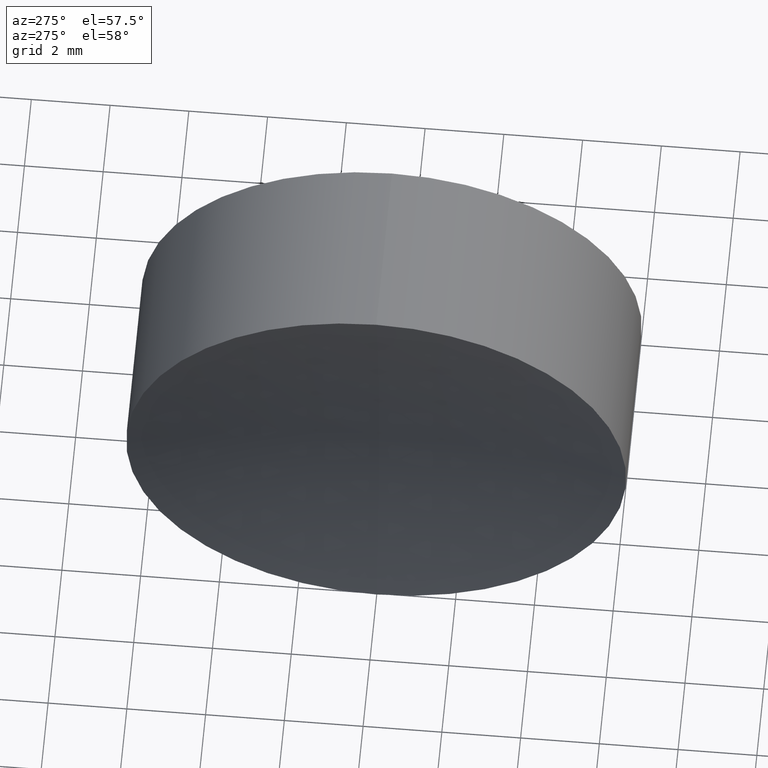
[diagram: clean part render]
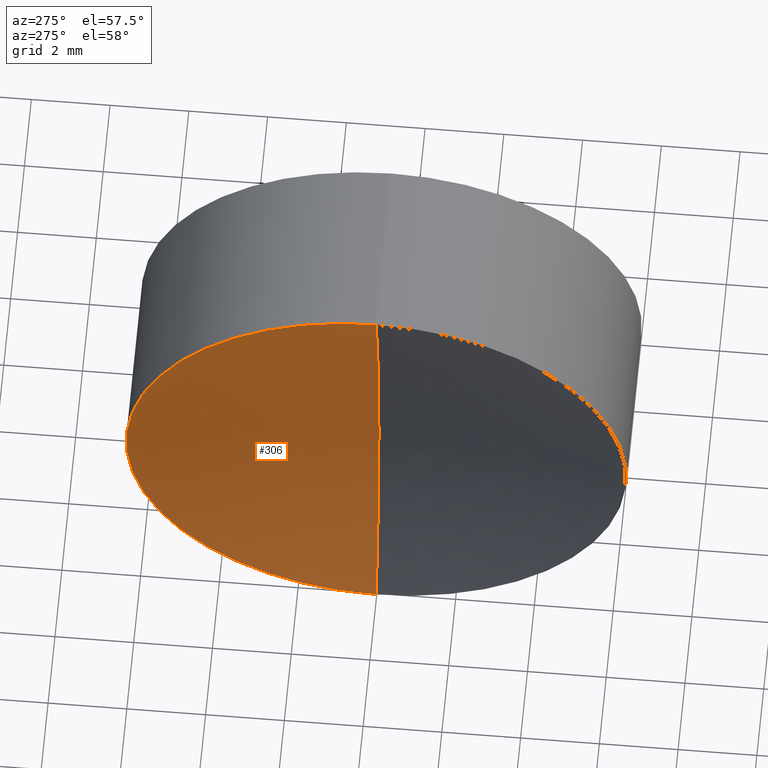
[diagram: same view with one face highlighted and labeled with its STEP entity id]
A machine part, auxiliary view. The second image highlights one B-rep face of the part: STEP entity #306.
In plain terms, the highlighted spherical surface has radius 25.6 mm.
Its self-contained STEP definition (entity closure, byte-faithful):
#7 = DIRECTION ( 'NONE',  ( 0.0000000000000000000, -1.224646799147353200E-016, 1.000000000000000000 ) ) ;
#13 = AXIS2_PLACEMENT_3D ( 'NONE', #121, #16, #183 ) ;
#15 = DIRECTION ( 'NONE',  ( -1.000000000000000000, -0.0000000000000000000, 1.836970198721029700E-016 ) ) ;
#16 = DIRECTION ( 'NONE',  ( -0.0000000000000000000, 1.000000000000000000, 0.0000000000000000000 ) ) ;
#18 = CIRCLE ( 'NONE', #313, 6.350000000000041400 ) ;
#29 = CARTESIAN_POINT ( 'NONE',  ( 226.5920414512665400, 0.0000000000000000000, -3.135096722806400500E-015 ) ) ;
#38 = ORIENTED_EDGE ( 'NONE', *, *, #329, .T. ) ;
#40 = CIRCLE ( 'NONE', #171, 25.60000000000001900 ) ;
#52 = AXIS2_PLACEMENT_3D ( 'NONE', #300, #119, #271 ) ;
#64 = CARTESIAN_POINT ( 'NONE',  ( 225.7919910479895400, 7.776507174585746400E-016, -6.350000000000048500 ) ) ;
#86 = CARTESIAN_POINT ( 'NONE',  ( 200.9920414512665400, 0.0000000000000000000, -9.169891744871357800E-022 ) ) ;
#88 = CARTESIAN_POINT ( 'NONE',  ( 225.7919910479895400, 0.0000000000000000000, -4.162722405629622800E-014 ) ) ;
#105 = EDGE_CURVE ( 'NONE', #226, #322, #40, .T. ) ;
#114 = SPHERICAL_SURFACE ( 'NONE', #13, 25.60000000000001900 ) ;
#119 = DIRECTION ( 'NONE',  ( 0.0000000000000000000, -1.000000000000000000, 0.0000000000000000000 ) ) ;
#121 = CARTESIAN_POINT ( 'NONE',  ( 200.9920414512665400, 0.0000000000000000000, -9.169891744871357800E-022 ) ) ;
#125 = EDGE_CURVE ( 'NONE', #141, #322, #18, .T. ) ;
#136 = FACE_OUTER_BOUND ( 'NONE', #197, .T. ) ;
#141 = VERTEX_POINT ( 'NONE', #248 ) ;
#171 = AXIS2_PLACEMENT_3D ( 'NONE', #86, #185, #7 ) ;
#183 = DIRECTION ( 'NONE',  ( 0.0000000000000000000, 0.0000000000000000000, 1.000000000000000000 ) ) ;
#185 = DIRECTION ( 'NONE',  ( 2.249639673992786400E-032, 1.000000000000000000, 1.224646799147353200E-016 ) ) ;
#197 = EDGE_LOOP ( 'NONE', ( #275, #38, #312 ) ) ;
#226 = VERTEX_POINT ( 'NONE', #29 ) ;
#248 = CARTESIAN_POINT ( 'NONE',  ( 225.7919910479895400, 0.0000000000000000000, 6.350000000000003200 ) ) ;
#271 = DIRECTION ( 'NONE',  ( 0.0000000000000000000, 0.0000000000000000000, -1.000000000000000000 ) ) ;
#275 = ORIENTED_EDGE ( 'NONE', *, *, #105, .F. ) ;
#293 = DIRECTION ( 'NONE',  ( 0.0000000000000000000, 0.0000000000000000000, 1.000000000000000000 ) ) ;
#300 = CARTESIAN_POINT ( 'NONE',  ( 200.9920414512665400, 0.0000000000000000000, -9.169891744871357800E-022 ) ) ;
#306 = ADVANCED_FACE ( 'NONE', ( #136 ), #114, .F. ) ;
#308 = CIRCLE ( 'NONE', #52, 25.60000000000001900 ) ;
#312 = ORIENTED_EDGE ( 'NONE', *, *, #125, .T. ) ;
#313 = AXIS2_PLACEMENT_3D ( 'NONE', #88, #15, #293 ) ;
#322 = VERTEX_POINT ( 'NONE', #64 ) ;
#329 = EDGE_CURVE ( 'NONE', #226, #141, #308, .T. ) ;